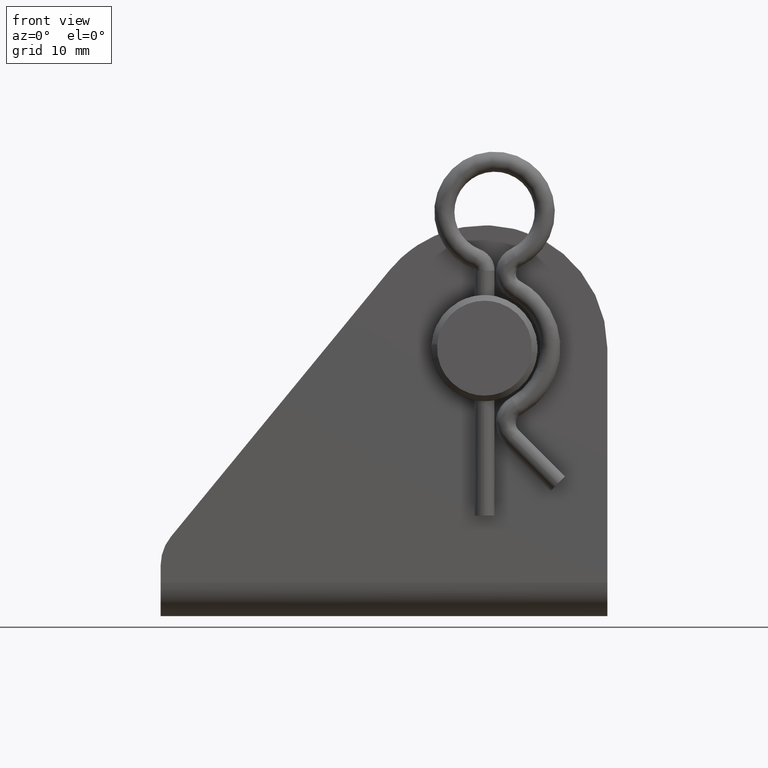
[diagram: clean part render]
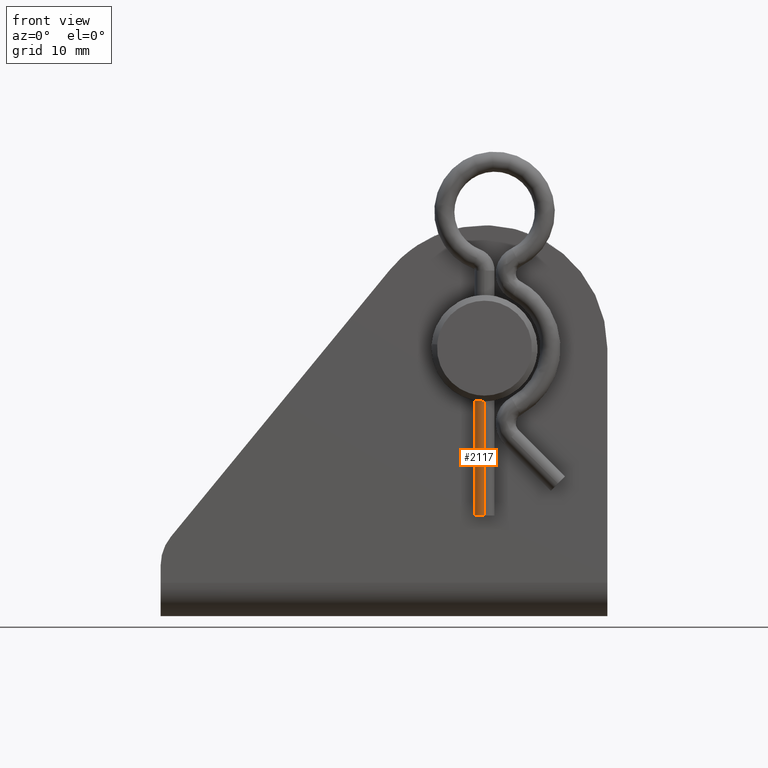
[diagram: same view with one face highlighted and labeled with its STEP entity id]
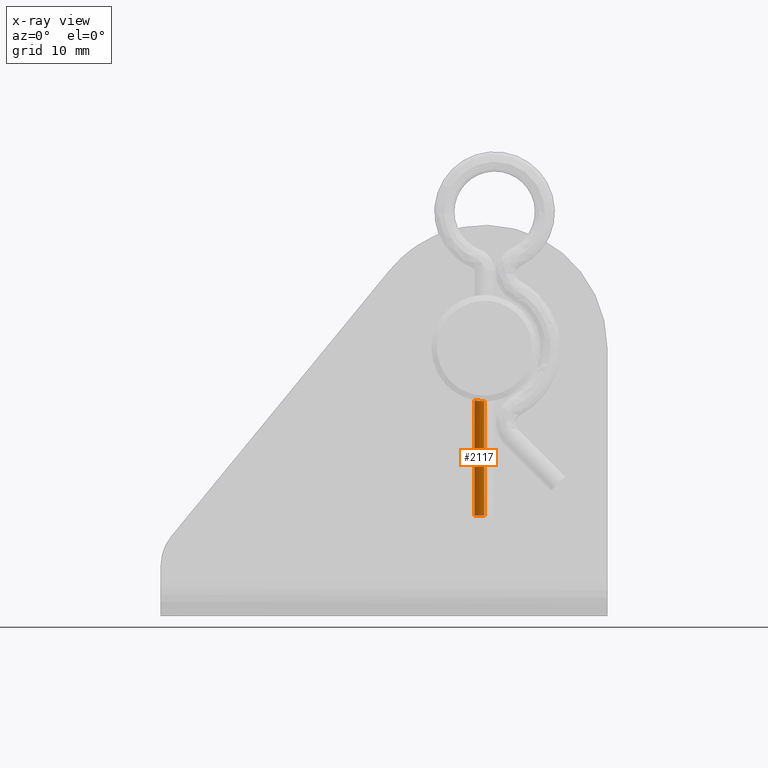
[diagram: x-ray of the same camera — body ghosted, the highlighted face saturated]
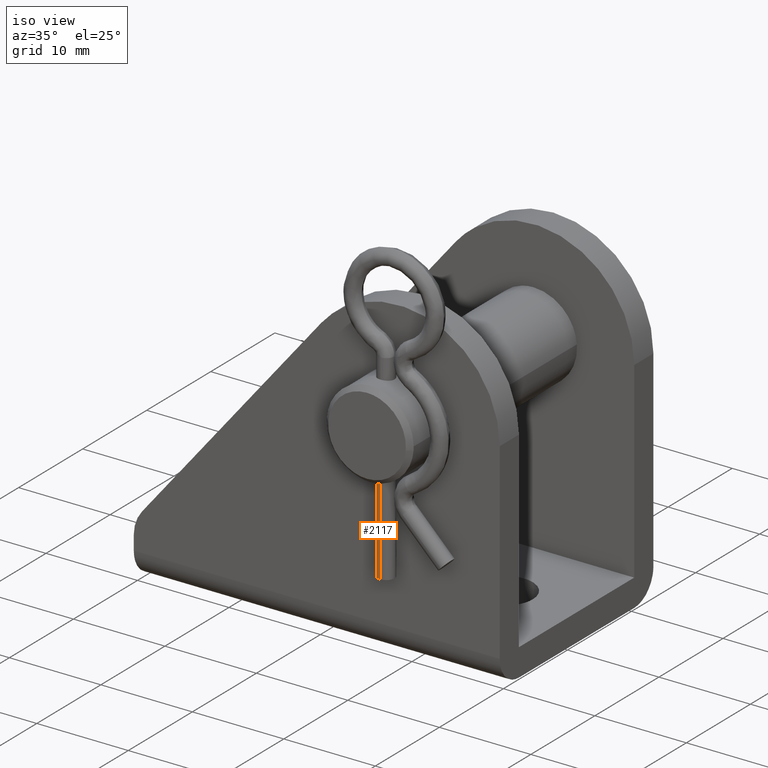
[diagram: same view with one face highlighted and labeled with its STEP entity id]
A machine part, front view. The second image highlights one B-rep face of the part: STEP entity #2117.
The next image is the same camera in x-ray: the body ghosted, the highlighted face saturated — about 0% of this face is hidden behind the body in this view.
A second angle (iso view) of the same face is appended — the face is thin or edge-on in the first view.
In plain terms, the highlighted face is a freeform B-spline surface patch.
Its self-contained STEP definition (entity closure, byte-faithful):
#1338=CARTESIAN_POINT('',(-0.023559282949393,-14.899691591697040,-15.0));
#1339=VERTEX_POINT('',#1338);
#1355=CARTESIAN_POINT('',(-0.899999999999949,-13.999999999990800,-15.0));
#1356=VERTEX_POINT('',#1355);
#1357=CARTESIAN_POINT('',(-0.023559282949393,-14.899691591697042,-15.0));
#1358=CARTESIAN_POINT('',(-0.899999999999949,-14.876741155089922,-14.999999999999995));
#1359=CARTESIAN_POINT('',(-0.899999999999949,-13.999999999990800,-15.0));
#1367=(BOUNDED_CURVE()B_SPLINE_CURVE(2,(#1357,#1358,#1359),.UNSPECIFIED.,.F.,.U.)B_SPLINE_CURVE_WITH_KNOTS((3,3),(0.254603312388595,0.500000000000000),.UNSPECIFIED.)CURVE()GEOMETRIC_REPRESENTATION_ITEM()RATIONAL_B_SPLINE_CURVE((0.989412377717424,0.712499897117345,1.0))REPRESENTATION_ITEM(''));
#1368=EDGE_CURVE('',#1339,#1356,#1367,.T.);
#1370=CARTESIAN_POINT('',(0.023559282949495,-13.100308408284560,-15.0));
#1371=VERTEX_POINT('',#1370);
#1372=CARTESIAN_POINT('',(-0.899999999999949,-13.999999999990800,-15.0));
#1373=CARTESIAN_POINT('',(-0.899999999999949,-13.099999999990802,-14.999999999999996));
#1374=CARTESIAN_POINT('',(5.117434E-014,-13.099999999990800,-15.0));
#1375=CARTESIAN_POINT('',(0.011781660120160,-13.099999999990796,-15.000000000000004));
#1376=CARTESIAN_POINT('',(0.023559282949496,-13.100308408284562,-15.0));
#1384=(BOUNDED_CURVE()B_SPLINE_CURVE(2,(#1372,#1373,#1374,#1375,#1376),.UNSPECIFIED.,.F.,.U.)B_SPLINE_CURVE_WITH_KNOTS((3,2,3),(0.500000000000000,0.750000000000000,0.754603312388595),.UNSPECIFIED.)CURVE()GEOMETRIC_REPRESENTATION_ITEM()RATIONAL_B_SPLINE_CURVE((1.0,0.707106781186547,1.0,0.994606884069203,0.989412377717424))REPRESENTATION_ITEM(''));
#1385=EDGE_CURVE('',#1356,#1371,#1384,.T.);
#2021=CARTESIAN_POINT('',(-0.023559253477038,-14.899691592468800,-4.405556485651108));
#2022=CARTESIAN_POINT('',(-0.923250845955039,-14.876132338991717,-4.405556485651108));
#2023=CARTESIAN_POINT('',(-0.899691592477950,-13.976440746513710,-4.405556485651108));
#2024=CARTESIAN_POINT('',(-0.876132339000861,-13.076749154035710,-4.405556485651108));
#2025=CARTESIAN_POINT('',(0.023559253477141,-13.100308407512800,-4.405556485651108));
#2026=CARTESIAN_POINT('',(-0.023559253477038,-14.899691592468800,-15.264861087858719));
#2027=CARTESIAN_POINT('',(-0.923250845955039,-14.876132338991717,-15.264861087858717));
#2028=CARTESIAN_POINT('',(-0.899691592477950,-13.976440746513710,-15.264861087858719));
#2029=CARTESIAN_POINT('',(-0.876132339000861,-13.076749154035710,-15.264861087858717));
#2030=CARTESIAN_POINT('',(0.023559253477141,-13.100308407512800,-15.264861087858719));
#2038=(BOUNDED_SURFACE()B_SPLINE_SURFACE(2,1,((#2021,#2026),(#2022,#2027),(#2023,#2028),(#2024,#2029),(#2025,#2030)),.UNSPECIFIED.,.F.,.F.,.U.)B_SPLINE_SURFACE_WITH_KNOTS((3,2,3),(2,2),(3.141592653589793,4.712388980384690,6.283185307179586),(0.0,10.859304602207621),.UNSPECIFIED.)GEOMETRIC_REPRESENTATION_ITEM()RATIONAL_B_SPLINE_SURFACE(((1.0,1.0),(0.707106781186548,0.707106781186548),(1.0,1.0),(0.707106781186548,0.707106781186548),(1.0,1.0)))REPRESENTATION_ITEM('')SURFACE());
#2039=ORIENTED_EDGE('',*,*,#1368,.F.);
#2040=CARTESIAN_POINT('',(-0.023560550815877,-14.899692694906911,-4.749939254691926));
#2041=VERTEX_POINT('',#2040);
#2042=CARTESIAN_POINT('',(-0.023560550815877,-14.899692694906911,-4.749939254691926));
#2043=CARTESIAN_POINT('',(-0.023559282949393,-14.899691591697040,-15.0));
#2044=QUASI_UNIFORM_CURVE('',1,(#2042,#2043),.UNSPECIFIED.,.F.,.U.);
#2045=EDGE_CURVE('',#2041,#1339,#2044,.T.);
#2046=ORIENTED_EDGE('',*,*,#2045,.F.);
#2047=CARTESIAN_POINT('',(-0.899999997927759,-14.000061075586190,-4.663957547376588));
#2048=VERTEX_POINT('',#2047);
#2049=CARTESIAN_POINT('',(-0.899999997927759,-14.000061075586190,-4.663957547376588));
#2050=CARTESIAN_POINT('',(-0.899995954111130,-14.059629564941149,-4.663958248423622));
#2051=CARTESIAN_POINT('',(-0.894136547887331,-14.118175634957190,-4.665099611216471));
#2052=CARTESIAN_POINT('',(-0.876942822748758,-14.204530276846199,-4.668351152463969));
#2053=CARTESIAN_POINT('',(-0.869800290000667,-14.233069304686770,-4.669691680598759));
#2054=CARTESIAN_POINT('',(-0.852630589430468,-14.289646118343400,-4.672857059331790));
#2055=CARTESIAN_POINT('',(-0.842564527055535,-14.317731293674679,-4.674688432892665));
#2056=CARTESIAN_POINT('',(-0.808682109122658,-14.399382369746281,-4.680710789563630));
#2057=CARTESIAN_POINT('',(-0.781057489747998,-14.450997352896570,-4.685459770748468));
#2058=CARTESIAN_POINT('',(-0.732127428121437,-14.524262701643700,-4.693266836350098));
#2059=CARTESIAN_POINT('',(-0.714468317837973,-14.548094592808200,-4.695996698219512));
#2060=CARTESIAN_POINT('',(-0.676976752582570,-14.593780286459200,-4.701547766349826));
#2061=CARTESIAN_POINT('',(-0.657247470033312,-14.615533425997731,-4.704354454295944));
#2062=CARTESIAN_POINT('',(-0.595186687174237,-14.677626214974641,-4.712746931393208));
#2063=CARTESIAN_POINT('',(-0.550010632310455,-14.714830386782490,-4.718306337390627));
#2064=CARTESIAN_POINT('',(-0.476333805517381,-14.764184997304881,-4.726119039339333));
#2065=CARTESIAN_POINT('',(-0.450877780565080,-14.779468700124600,-4.728622444820458));
#2066=CARTESIAN_POINT('',(-0.399072244150086,-14.807219578150180,-4.733275962930478));
#2067=CARTESIAN_POINT('',(-0.346128565150287,-14.832322848281720,-4.737602872219490));
#2068=CARTESIAN_POINT('',(-0.290925554956596,-14.852190536141000,-4.741164465554282));
#2069=CARTESIAN_POINT('',(-0.234568689847542,-14.869392781118060,-4.744286540402899));
#2070=CARTESIAN_POINT('',(-0.205670543602209,-14.876685852032971,-4.745632464106049));
#2071=CARTESIAN_POINT('',(-0.126092000269328,-14.892608435331489,-4.748592671769218));
#2072=CARTESIAN_POINT('',(-0.075087505831122,-14.898351790665840,-4.749683826650273));
#2073=CARTESIAN_POINT('',(-0.023560550815877,-14.899692694906911,-4.749939254691926));
#2074=B_SPLINE_CURVE_WITH_KNOTS('',3,(#2049,#2050,#2051,#2052,#2053,#2054,#2055,#2056,#2057,#2058,#2059,#2060,#2061,#2062,#2063,#2064,#2065,#2066,#2067,#2068,#2069,#2070,#2071,#2072,#2073),.UNSPECIFIED.,.F.,.U.,(4,2,2,2,2,2,2,2,2,1,2,2,4),(0.499999999999995,0.531249999999995,0.546874999999995,0.562499999999996,0.593749999999997,0.609374999999998,0.624999999999998,0.656249999999999,0.671874999999999,0.687500000000000,0.703125000000000,0.718750000000000,0.745865624198676),.UNSPECIFIED.);
#2075=EDGE_CURVE('',#2048,#2041,#2074,.T.);
#2076=ORIENTED_EDGE('',*,*,#2075,.F.);
#2077=CARTESIAN_POINT('',(0.023560551549773,-13.100307304982380,-4.749939253341518));
#2078=VERTEX_POINT('',#2077);
#2079=CARTESIAN_POINT('',(0.023560551549773,-13.100307304982380,-4.749939253341518));
#2080=CARTESIAN_POINT('',(0.015704128871892,-13.100102844756540,-4.749978219316538));
#2081=CARTESIAN_POINT('',(0.007835560171995,-13.100000731511070,-4.749997756555075));
#2082=CARTESIAN_POINT('',(-0.059614820950071,-13.100004071388240,-4.749997202934543));
#2083=CARTESIAN_POINT('',(-0.118163051157532,-13.105862635134860,-4.748877367487630));
#2084=CARTESIAN_POINT('',(-0.204521944603102,-13.123056118645451,-4.745680294788919));
#2085=CARTESIAN_POINT('',(-0.233062554284673,-13.130198738684729,-4.744361490112867));
#2086=CARTESIAN_POINT('',(-0.289642740022341,-13.147369021142961,-4.741243729642731));
#2087=CARTESIAN_POINT('',(-0.317730280786449,-13.157435777805089,-4.739438260393269));
#2088=CARTESIAN_POINT('',(-0.399388256376126,-13.191321067991019,-4.733492629196051));
#2089=CARTESIAN_POINT('',(-0.451007171734692,-13.218948444150000,-4.728793750013066));
#2090=CARTESIAN_POINT('',(-0.524276111576965,-13.267882440268981,-4.721040604043081));
#2091=CARTESIAN_POINT('',(-0.548108498229008,-13.285542521699870,-4.718325312906761));
#2092=CARTESIAN_POINT('',(-0.593796886754783,-13.323037821386860,-4.712793541508813));
#2093=CARTESIAN_POINT('',(-0.615550732600671,-13.342768720543040,-4.709991744138621));
#2094=CARTESIAN_POINT('',(-0.677644100556515,-13.404833220859810,-4.701599047291790));
#2095=CARTESIAN_POINT('',(-0.714846591618709,-13.450010196191601,-4.696019115705895));
#2096=CARTESIAN_POINT('',(-0.764197453348530,-13.523685355396291,-4.688152350453256));
#2097=CARTESIAN_POINT('',(-0.779480080708213,-13.549140903794250,-4.685627176598471));
#2098=CARTESIAN_POINT('',(-0.807228839861405,-13.600945123160130,-4.680926595366977));
#2099=CARTESIAN_POINT('',(-0.832330100915870,-13.653887219866460,-4.676548922387120));
#2100=CARTESIAN_POINT('',(-0.852196240879908,-13.709088645867141,-4.672936340913727));
#2101=CARTESIAN_POINT('',(-0.869397193745313,-13.765444226968929,-4.669766790019692));
#2102=CARTESIAN_POINT('',(-0.876689766918439,-13.794341911597019,-4.668398809639007));
#2103=CARTESIAN_POINT('',(-0.894151500086943,-13.881618985781561,-4.665097212006934));
#2104=CARTESIAN_POINT('',(-0.900004041673870,-13.940492584280021,-4.663956692277231));
#2105=CARTESIAN_POINT('',(-0.899999997927759,-14.000061075586190,-4.663957547376588));
#2106=B_SPLINE_CURVE_WITH_KNOTS('',3,(#2079,#2080,#2081,#2082,#2083,#2084,#2085,#2086,#2087,#2088,#2089,#2090,#2091,#2092,#2093,#2094,#2095,#2096,#2097,#2098,#2099,#2100,#2101,#2102,#2103,#2104,#2105),.UNSPECIFIED.,.F.,.U.,(4,2,2,2,2,2,2,2,2,2,1,2,2,4),(0.245865800461777,0.249999999999997,0.281249999999996,0.296874999999996,0.312499999999995,0.343749999999995,0.359374999999995,0.374999999999995,0.406249999999995,0.421874999999995,0.437499999999995,0.453124999999995,0.468749999999995,0.499999999999995),.UNSPECIFIED.);
#2107=EDGE_CURVE('',#2078,#2048,#2106,.T.);
#2108=ORIENTED_EDGE('',*,*,#2107,.F.);
#2109=CARTESIAN_POINT('',(0.023560551549773,-13.100307304982380,-4.749939253341518));
#2110=CARTESIAN_POINT('',(0.023559282949495,-13.100308408284560,-15.0));
#2111=QUASI_UNIFORM_CURVE('',1,(#2109,#2110),.UNSPECIFIED.,.F.,.U.);
#2112=EDGE_CURVE('',#2078,#1371,#2111,.T.);
#2113=ORIENTED_EDGE('',*,*,#2112,.T.);
#2114=ORIENTED_EDGE('',*,*,#1385,.F.);
#2115=EDGE_LOOP('',(#2039,#2046,#2076,#2108,#2113,#2114));
#2116=FACE_OUTER_BOUND('',#2115,.T.);
#2117=ADVANCED_FACE('',(#2116),#2038,.T.);